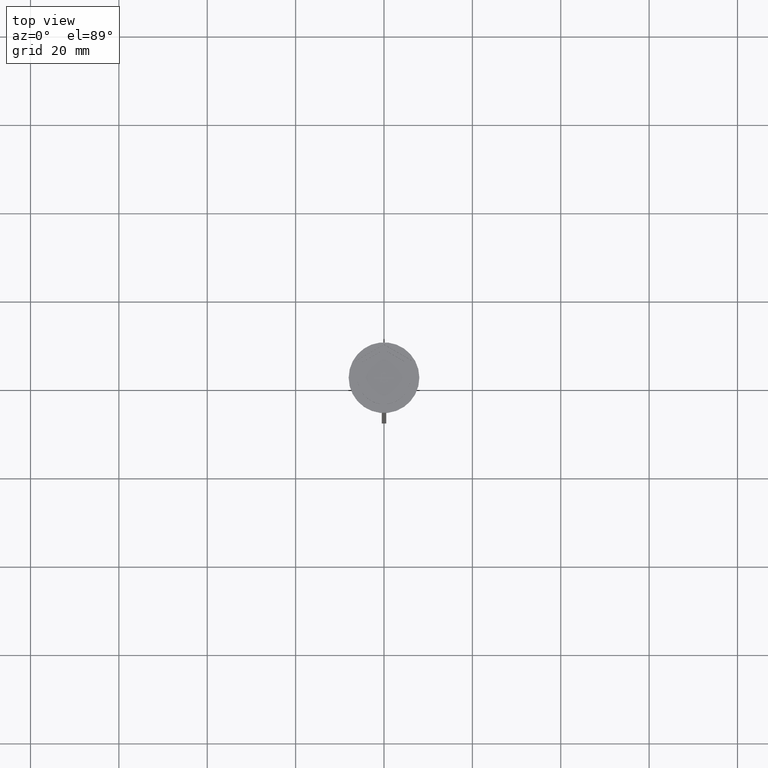
[diagram: clean part render]
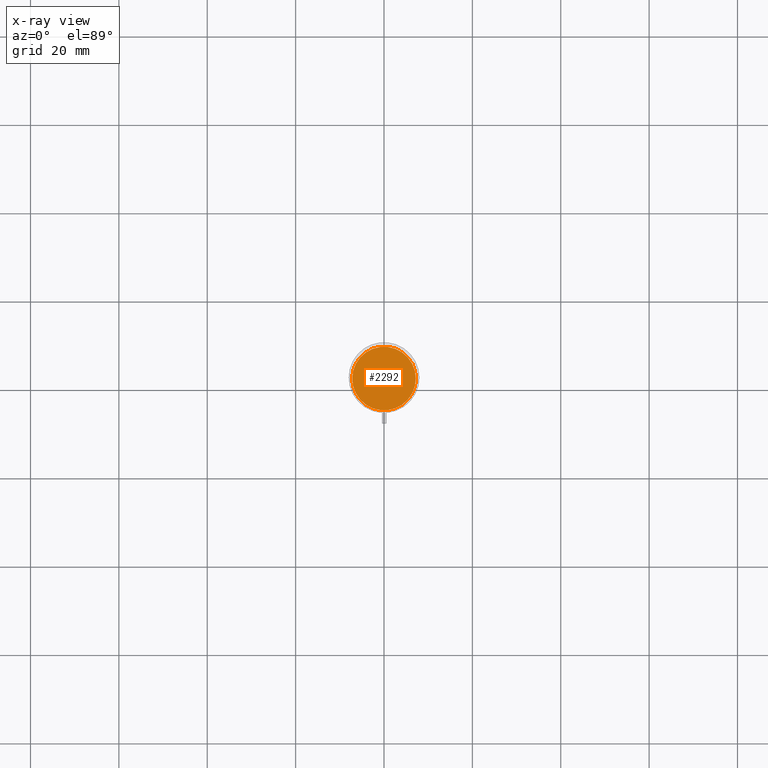
[diagram: x-ray — body ghosted, one internal face saturated and labeled with its STEP entity id]
A machine part, top view, then the same camera in x-ray: the body is ghosted and one INTERNAL B-rep face — a face not visible from any outside direction — is saturated and labeled: STEP entity #2292.
In plain terms, the highlighted planar face has unit normal (0, 0, -1).
Its self-contained STEP definition (entity closure, byte-faithful):
#72 = CARTESIAN_POINT ( 'NONE',  ( 0.000000000000000000, 0.000000000000000000, -12.00000000000000000 ) ) ;
#442 = EDGE_LOOP ( 'NONE', ( #1245, #1339 ) ) ;
#551 = VERTEX_POINT ( 'NONE', #2013 ) ;
#592 = AXIS2_PLACEMENT_3D ( 'NONE', #1321, #1512, #1142 ) ;
#640 = DIRECTION ( 'NONE',  ( -0.000000000000000000, -0.000000000000000000, 1.000000000000000000 ) ) ;
#871 = EDGE_CURVE ( 'NONE', #1290, #551, #1943, .T. ) ;
#872 = AXIS2_PLACEMENT_3D ( 'NONE', #72, #640, #1546 ) ;
#1142 = DIRECTION ( 'NONE',  ( -1.000000000000000000, 0.000000000000000000, 0.000000000000000000 ) ) ;
#1147 = CIRCLE ( 'NONE', #592, 7.200000000000001954 ) ;
#1245 = ORIENTED_EDGE ( 'NONE', *, *, #1604, .T. ) ;
#1290 = VERTEX_POINT ( 'NONE', #2480 ) ;
#1297 = FACE_OUTER_BOUND ( 'NONE', #442, .T. ) ;
#1321 = CARTESIAN_POINT ( 'NONE',  ( 0.000000000000000000, 0.000000000000000000, -12.00000000000000000 ) ) ;
#1339 = ORIENTED_EDGE ( 'NONE', *, *, #871, .T. ) ;
#1393 = AXIS2_PLACEMENT_3D ( 'NONE', #1721, #2071, #2271 ) ;
#1512 = DIRECTION ( 'NONE',  ( -0.000000000000000000, -0.000000000000000000, 1.000000000000000000 ) ) ;
#1546 = DIRECTION ( 'NONE',  ( -1.000000000000000000, 0.000000000000000000, 0.000000000000000000 ) ) ;
#1604 = EDGE_CURVE ( 'NONE', #551, #1290, #1147, .T. ) ;
#1721 = CARTESIAN_POINT ( 'NONE',  ( 0.000000000000000000, 0.000000000000000000, -12.00000000000000000 ) ) ;
#1943 = CIRCLE ( 'NONE', #872, 7.200000000000001954 ) ;
#2013 = CARTESIAN_POINT ( 'NONE',  ( -7.200000000000001954, 0.000000000000000000, -12.00000000000000000 ) ) ;
#2071 = DIRECTION ( 'NONE',  ( 0.000000000000000000, 0.000000000000000000, -1.000000000000000000 ) ) ;
#2262 = PLANE ( 'NONE',  #1393 ) ;
#2271 = DIRECTION ( 'NONE',  ( -1.000000000000000000, 0.000000000000000000, -0.000000000000000000 ) ) ;
#2292 = ADVANCED_FACE ( 'NONE', ( #1297 ), #2262, .F. ) ;
#2480 = CARTESIAN_POINT ( 'NONE',  ( 7.200000000000001954, 9.001153973733047589E-16, -12.00000000000000000 ) ) ;